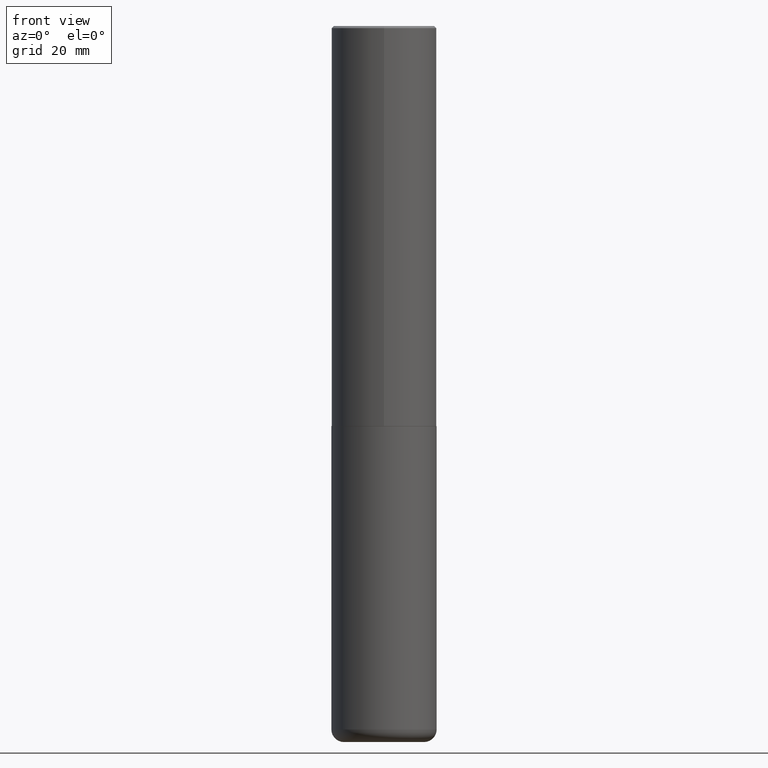
[diagram: clean part render]
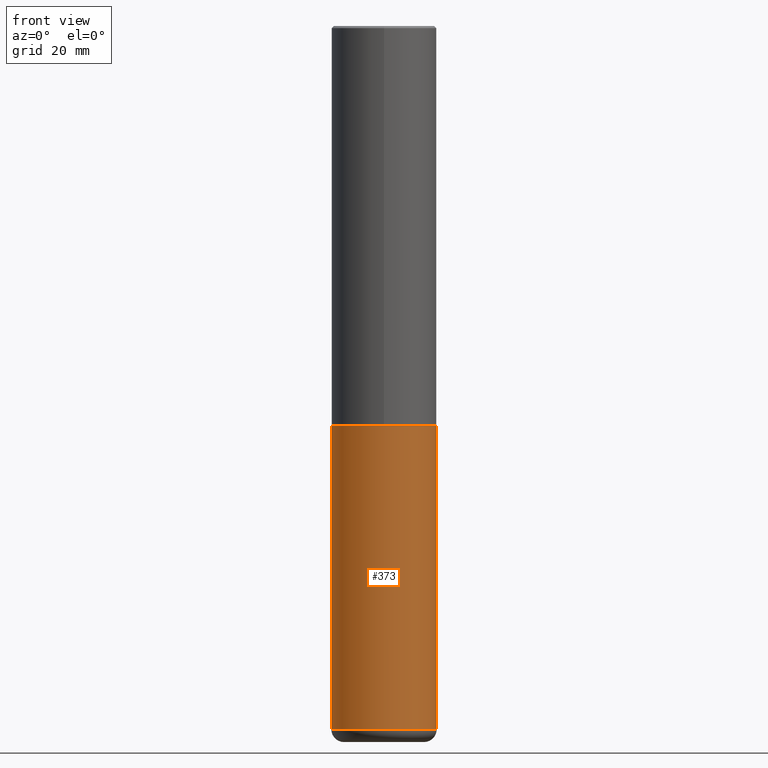
[diagram: same view with one face highlighted and labeled with its STEP entity id]
A machine part, front view. The second image highlights one B-rep face of the part: STEP entity #373.
In plain terms, the highlighted cylindrical surface (partial cylindrical patch) has radius 12.5006 mm, axis along (-0, 0, 1).
Its self-contained STEP definition (entity closure, byte-faithful):
#2 = DIRECTION ( 'NONE',  ( -2.445468806185136597E-29, 3.491481338843145583E-15, 1.000000000000000000 ) ) ;
#3 = VERTEX_POINT ( 'NONE', #71 ) ;
#19 = CARTESIAN_POINT ( 'NONE',  ( 0.4921499999999999764, -3.436665081823295777E-15, 2.399810400207969603E-29 ) ) ;
#51 = CARTESIAN_POINT ( 'NONE',  ( 1.607846830690603466E-28, -2.295579150662591525E-14, -6.574799999999999756 ) ) ;
#58 = CARTESIAN_POINT ( 'NONE',  ( 0.4921499999999999764, -1.649515443723054663E-14, -3.740100000000000424 ) ) ;
#60 = CYLINDRICAL_SURFACE ( 'NONE', #339, 0.4921499999999999764 ) ;
#70 = DIRECTION ( 'NONE',  ( 1.000000000000000000, -6.982962677686265922E-15, 4.876176775795935793E-29 ) ) ;
#71 = CARTESIAN_POINT ( 'NONE',  ( -0.4921499999999999764, -1.451020435697325173E-14, -3.740100000000000424 ) ) ;
#80 = DIRECTION ( 'NONE',  ( 1.000000000000000000, -6.982962677686265922E-15, 0.000000000000000000 ) ) ;
#81 = LINE ( 'NONE', #19, #403 ) ;
#95 = EDGE_CURVE ( 'NONE', #3, #318, #275, .T. ) ;
#99 = VERTEX_POINT ( 'NONE', #397 ) ;
#126 = AXIS2_PLACEMENT_3D ( 'NONE', #335, #210, #80 ) ;
#130 = EDGE_CURVE ( 'NONE', #263, #3, #182, .T. ) ;
#140 = EDGE_CURVE ( 'NONE', #263, #99, #303, .T. ) ;
#144 = EDGE_LOOP ( 'NONE', ( #417, #171, #358, #270 ) ) ;
#149 = DIRECTION ( 'NONE',  ( 1.000000000000000000, -6.982962677686265133E-15, 0.000000000000000000 ) ) ;
#171 = ORIENTED_EDGE ( 'NONE', *, *, #140, .T. ) ;
#177 = DIRECTION ( 'NONE',  ( -2.445468806185136877E-29, 3.491481338843145188E-15, 1.000000000000000000 ) ) ;
#181 = EDGE_CURVE ( 'NONE', #99, #318, #81, .T. ) ;
#182 = LINE ( 'NONE', #247, #202 ) ;
#202 = VECTOR ( 'NONE', #370, 39.37007874015748143 ) ;
#210 = DIRECTION ( 'NONE',  ( -2.445468806185136597E-29, 3.491481338843145583E-15, 1.000000000000000000 ) ) ;
#247 = CARTESIAN_POINT ( 'NONE',  ( -0.4921499999999999764, 3.496936074043332897E-15, -2.420853904668951509E-29 ) ) ;
#263 = VERTEX_POINT ( 'NONE', #407 ) ;
#270 = ORIENTED_EDGE ( 'NONE', *, *, #95, .F. ) ;
#275 = CIRCLE ( 'NONE', #126, 0.4921499999999999764 ) ;
#287 = CARTESIAN_POINT ( 'NONE',  ( 0.000000000000000000, 0.000000000000000000, 0.000000000000000000 ) ) ;
#303 = CIRCLE ( 'NONE', #324, 0.4921500000000000319 ) ;
#308 = DIRECTION ( 'NONE',  ( -2.445468806185136597E-29, 3.491481338843145583E-15, 1.000000000000000000 ) ) ;
#318 = VERTEX_POINT ( 'NONE', #58 ) ;
#324 = AXIS2_PLACEMENT_3D ( 'NONE', #51, #308, #149 ) ;
#335 = CARTESIAN_POINT ( 'NONE',  ( 9.146297882013029477E-29, -1.305848935540725085E-14, -3.740100000000000424 ) ) ;
#339 = AXIS2_PLACEMENT_3D ( 'NONE', #287, #2, #70 ) ;
#345 = FACE_OUTER_BOUND ( 'NONE', #144, .T. ) ;
#358 = ORIENTED_EDGE ( 'NONE', *, *, #181, .T. ) ;
#370 = DIRECTION ( 'NONE',  ( -2.445468806185136877E-29, 3.491481338843145188E-15, 1.000000000000000000 ) ) ;
#373 = ADVANCED_FACE ( 'NONE', ( #345 ), #60, .T. ) ;
#397 = CARTESIAN_POINT ( 'NONE',  ( 0.4921499999999999764, -2.639245658844920945E-14, -6.574799999999999756 ) ) ;
#403 = VECTOR ( 'NONE', #177, 39.37007874015748143 ) ;
#407 = CARTESIAN_POINT ( 'NONE',  ( -0.4921499999999999764, -1.945885543258258157E-14, -6.574799999999999756 ) ) ;
#417 = ORIENTED_EDGE ( 'NONE', *, *, #130, .F. ) ;